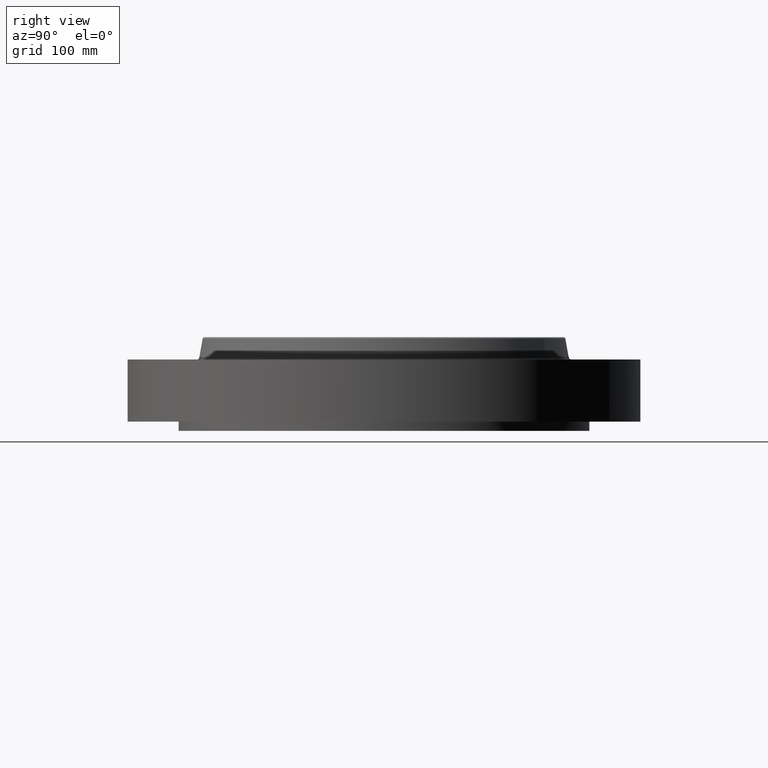
[diagram: clean part render]
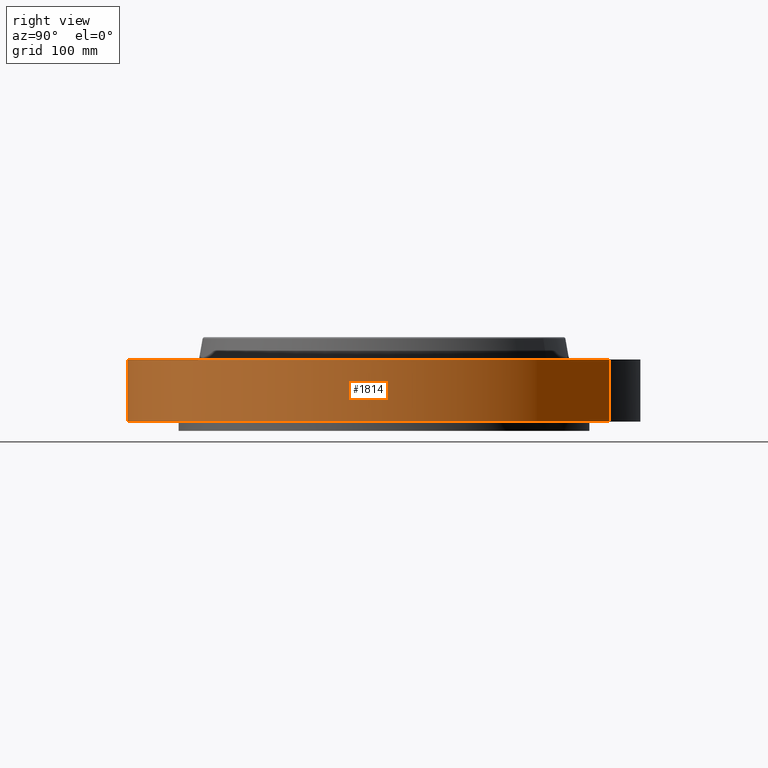
[diagram: same view with one face highlighted and labeled with its STEP entity id]
A machine part, right view. The second image highlights one B-rep face of the part: STEP entity #1814.
In plain terms, the highlighted cylindrical surface (partial cylindrical patch) has radius 222.25 mm, axis along (0, 0, -1).
Its self-contained STEP definition (entity closure, byte-faithful):
#1405=AXIS2_PLACEMENT_3D('Circle Axis2P3D',#1403,#1404,$) ;
#1787=AXIS2_PLACEMENT_3D('Cylinder Axis2P3D',#1784,#1785,#1786) ;
#1798=AXIS2_PLACEMENT_3D('Circle Axis2P3D',#1796,#1797,$) ;
#1398=CARTESIAN_POINT('Vertex',(-4.1949734628,-7.67884741657,1.1189649382E-015)) ;
#1400=CARTESIAN_POINT('Vertex',(4.1949734628,7.67884741657,1.1189649382E-015)) ;
#1403=CARTESIAN_POINT('Axis2P3D Location',(0.,0.,0.)) ;
#1784=CARTESIAN_POINT('Axis2P3D Location',(0.,0.,1.28350000001)) ;
#1789=CARTESIAN_POINT('Line Origine',(4.1949734628,7.67884741657,1.06)) ;
#1793=CARTESIAN_POINT('Vertex',(4.1949734628,7.67884741657,2.12000000001)) ;
#1796=CARTESIAN_POINT('Axis2P3D Location',(0.,0.,2.12000000001)) ;
#1800=CARTESIAN_POINT('Vertex',(-4.1949734628,-7.67884741657,2.12000000001)) ;
#1803=CARTESIAN_POINT('Line Origine',(-4.1949734628,-7.67884741657,1.06)) ;
#1404=DIRECTION('Axis2P3D Direction',(0.,0.,-0.0393700787402)) ;
#1785=DIRECTION('Axis2P3D Direction',(0.,0.,-0.0393700787402)) ;
#1786=DIRECTION('Axis2P3D XDirection',(-0.0188750212049,-0.0345504945626,0.)) ;
#1790=DIRECTION('Vector Direction',(0.,0.,-0.0393700787402)) ;
#1797=DIRECTION('Axis2P3D Direction',(0.,0.,-0.0393700787402)) ;
#1804=DIRECTION('Vector Direction',(0.,0.,-0.0393700787402)) ;
#1791=VECTOR('Line Direction',#1790,0.0393700787402) ;
#1805=VECTOR('Line Direction',#1804,0.0393700787402) ;
#1809=ORIENTED_EDGE('',*,*,#1407,.F.) ;
#1810=ORIENTED_EDGE('',*,*,#1795,.T.) ;
#1811=ORIENTED_EDGE('',*,*,#1802,.T.) ;
#1812=ORIENTED_EDGE('',*,*,#1807,.F.) ;
#1814=ADVANCED_FACE('PartBody',(#1813),#1788,.T.) ;
#1406=CIRCLE('generated circle',#1405,8.75000000003) ;
#1799=CIRCLE('generated circle',#1798,8.75000000003) ;
#1788=CYLINDRICAL_SURFACE('generated cylinder',#1787,8.75000000003) ;
#1407=EDGE_CURVE('',#1401,#1399,#1406,.T.) ;
#1795=EDGE_CURVE('',#1401,#1794,#1792,.F.) ;
#1802=EDGE_CURVE('',#1794,#1801,#1799,.T.) ;
#1807=EDGE_CURVE('',#1399,#1801,#1806,.F.) ;
#1808=EDGE_LOOP('',(#1809,#1810,#1811,#1812)) ;
#1813=FACE_OUTER_BOUND('',#1808,.T.) ;
#1792=LINE('Line',#1789,#1791) ;
#1806=LINE('Line',#1803,#1805) ;
#1399=VERTEX_POINT('',#1398) ;
#1401=VERTEX_POINT('',#1400) ;
#1794=VERTEX_POINT('',#1793) ;
#1801=VERTEX_POINT('',#1800) ;